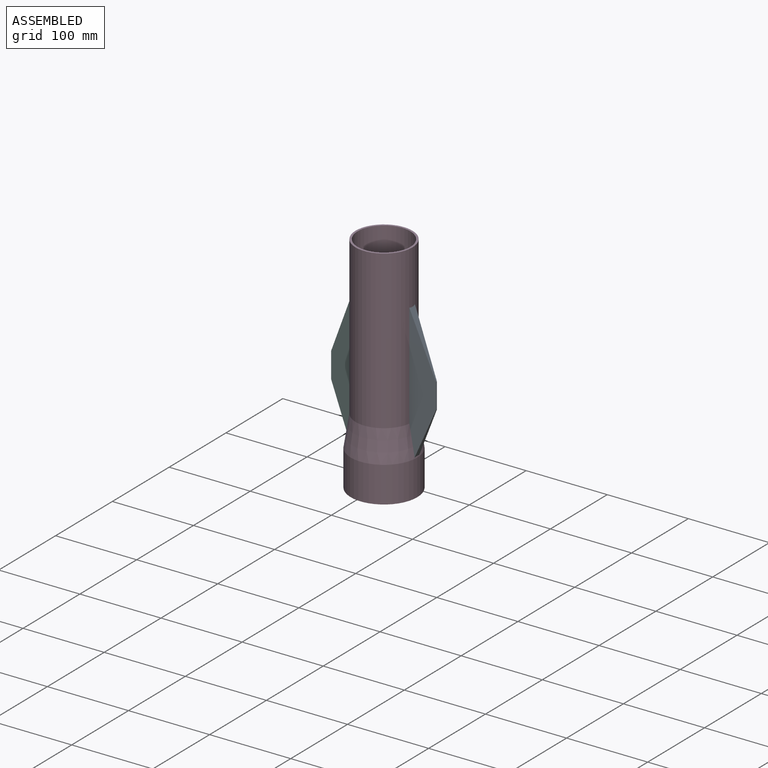
[diagram: assembled view]
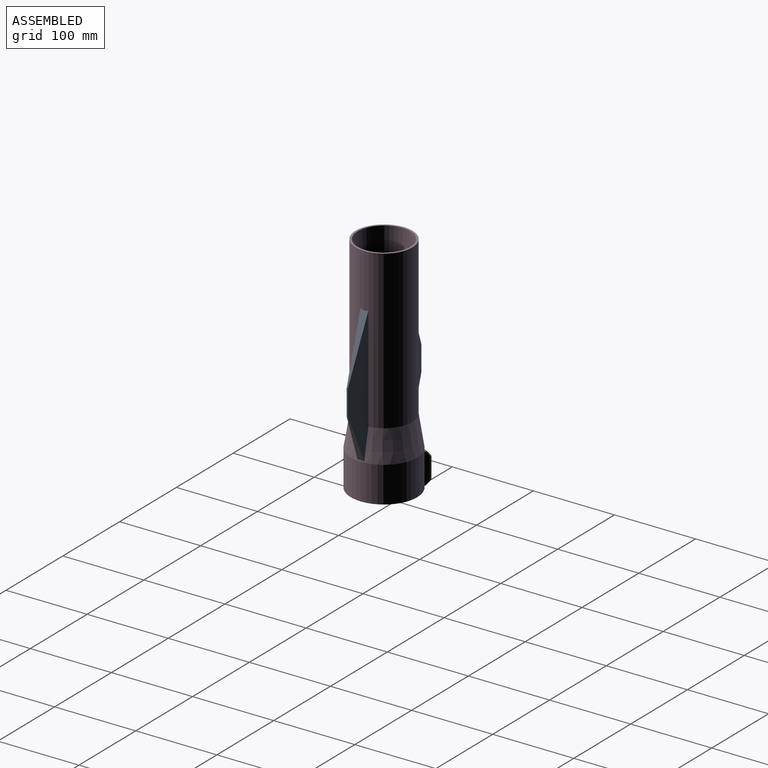
[diagram: assembled view, second angle]
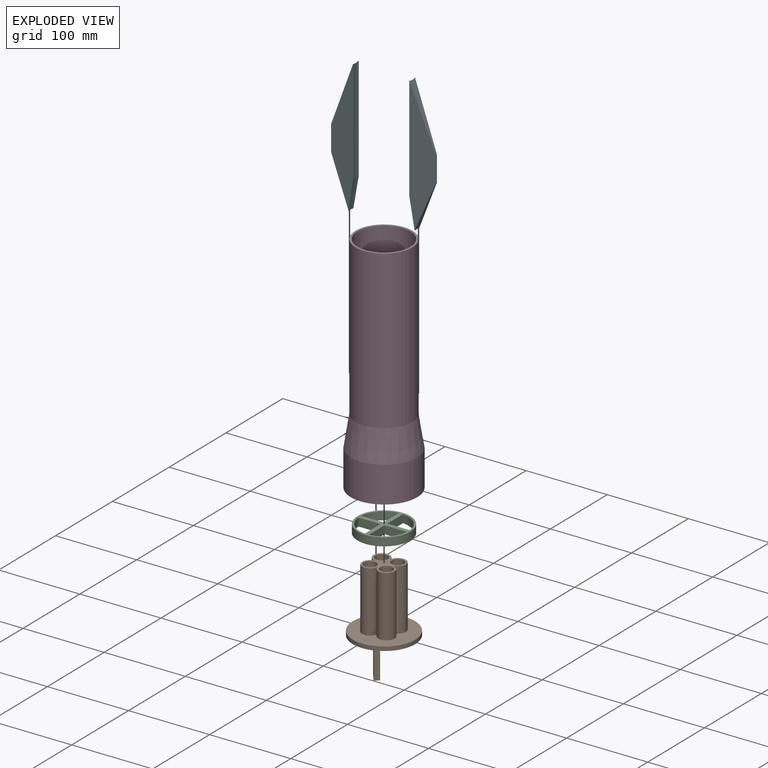
[diagram: exploded view]
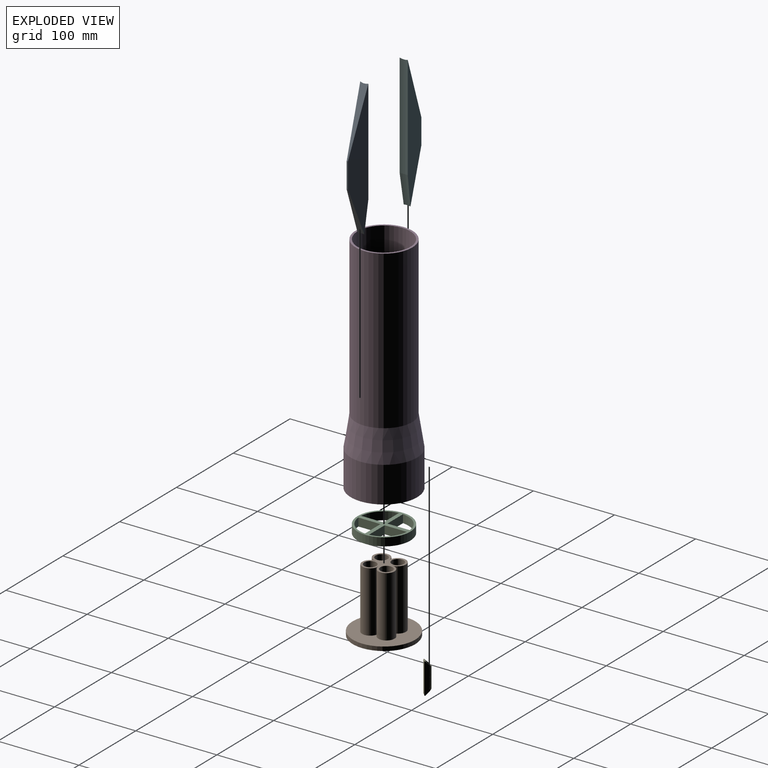
[diagram: exploded view, second angle]
ASSEMBLY  parts=6 mates=5
PART A: 7 faces, bbox 165.9x10x30 mm
  f0: plane 58.03x23.97mm, normal (0.38,0,0.92), area 307.7mm2, adj f1,f3,f4,f6
  f1: plane 31.5x1.57mm, normal (0,0,1), area 49.6mm2, adj f0,f2,f3,f4
  f2: plane 76.32x29.98mm, normal (-0.37,0,0.93), area 468mm2, adj f1,f3,f4,f5
  f3: plane 165.86x29.98mm, normal (0,-0.99,0.14), area 3049.8mm2, adj f0,f1,f2,f5,f6
  f4: plane 165.86x29.98mm, normal (0,0.99,0.14), area 3049.8mm2, adj f0,f1,f2,f5,f6
  f5: cylinder r=35mm len=128.52mm, axis (1,0,0), area 1283.3mm2, adj f2,f3,f4,f6
  f6: cylinder r=35mm len=37.41mm, axis (0.99,0,0.16), area 344.8mm2, adj f0,f3,f4,f5
PART B: 20 faces, bbox 77x77x80 mm
  f0: cylinder r=9mm len=75mm, axis (0,0,-1), area 4241.2mm2, adj f6,f12
  f1: cylinder r=9mm len=75mm, axis (0,0,-1), area 4241.2mm2, adj f6,f11
  f2: cylinder r=9mm len=75mm, axis (0,0,-1), area 4241.2mm2, adj f6,f14
  f3: cylinder r=9mm len=75mm, axis (0,0,-1), area 4241.2mm2, adj f6,f13
  f4: cylinder r=38.5mm len=77mm, axis (0,0,-1), area 1209.5mm2, adj f5,f6
  f5: plane 77x77mm, normal (0,0,1), area 3314.1mm2, adj f4,f7,f8,f9,f10
  f6: plane 77x77mm, normal (0,0,-1), area 3638.7mm2, adj f0,f1,f2,f3,f4
  f7: cylinder r=10mm len=75mm, axis (0,0,-1), area 3534.3mm2, adj f5,f8,f10,f15
  f8: cylinder r=10mm len=75mm, axis (0,0,-1), area 3534.3mm2, adj f5,f7,f9,f15
  f9: cylinder r=10mm len=75mm, axis (0,0,-1), area 3534.3mm2, adj f5,f8,f10,f15
  f10: cylinder r=10mm len=75mm, axis (0,0,-1), area 3534.3mm2, adj f5,f7,f9,f15
  f11: plane 18x18mm, normal (0,0,-1), area 77.8mm2, adj f1,f18
  f12: plane 18x18mm, normal (0,0,-1), area 77.8mm2, adj f0,f17
  f13: plane 18x18mm, normal (0,0,-1), area 77.8mm2, adj f3,f19
  f14: plane 18x18mm, normal (0,0,-1), area 77.8mm2, adj f2,f16
  f15: plane 40x40mm, normal (0,0,1), area 635.6mm2, adj f7,f8,f9,f10,f16,f17,f18,f19
  f16: cylinder r=7.5mm len=15mm, axis (0,0,1), area 235.6mm2, adj f14,f15
  f17: cylinder r=7.5mm len=15mm, axis (0,0,1), area 235.6mm2, adj f12,f15
  f18: cylinder r=7.5mm len=15mm, axis (0,0,1), area 235.6mm2, adj f11,f15
  f19: cylinder r=7.5mm len=15mm, axis (0,0,1), area 235.6mm2, adj f13,f15
PART C: 15 faces, bbox 65x65x10 mm
  f0: plane 27.4x10mm, normal (1,0,0), area 274mm2, adj f1,f8,f13,f14
  f1: cylinder r=30mm len=27.4mm, axis (0,0,-1), area 421.2mm2, adj f0,f8,f13,f14
  f2: cylinder r=30mm len=27.4mm, axis (0,0,-1), area 421.2mm2, adj f3,f9,f13,f14
  f3: plane 27.4x10mm, normal (-1,0,0), area 274mm2, adj f2,f9,f13,f14
  f4: cylinder r=30mm len=27.4mm, axis (0,0,-1), area 421.2mm2, adj f5,f10,f13,f14
  f5: plane 27.4x10mm, normal (0,-1,0), area 274mm2, adj f4,f10,f13,f14
  f6: cylinder r=30mm len=27.4mm, axis (0,0,-1), area 421.2mm2, adj f7,f11,f13,f14
  f7: plane 27.4x10mm, normal (1,0,0), area 274mm2, adj f6,f11,f13,f14
  f8: plane 27.4x10mm, normal (0,1,0), area 274mm2, adj f0,f1,f13,f14
  f9: plane 27.4x10mm, normal (0,1,0), area 274mm2, adj f2,f3,f13,f14
  f10: plane 27.4x10mm, normal (-1,0,0), area 274mm2, adj f4,f5,f13,f14
  f11: plane 27.4x10mm, normal (0,-1,0), area 274mm2, adj f6,f7,f13,f14
  f12: cylinder r=32.5mm len=65mm, axis (0,0,-1), area 2042mm2, adj f13,f14
  f13: plane 65x65mm, normal (0,0,1), area 1065.2mm2, adj f0,f1,f2,f3,f4,f5,f6,f7
  f14: plane 65x65mm, normal (0,0,-1), area 1065.2mm2, adj f0,f1,f2,f3,f4,f5,f6,f7
PART D: 8 faces, bbox 82x82x276.7 mm
  f0: cylinder r=35mm len=194.5mm, axis (0,0,-1), area 42772.8mm2, adj f1,f7
  f1: cone r=35mm half-angle=9deg, axis (0,0,-1), area 9185.3mm2, adj f0,f2
  f2: cylinder r=41mm len=82mm, axis (0,0,-1), area 11386.4mm2, adj f1,f3
  f3: plane 82x82mm, normal (0,0,-1), area 624.4mm2, adj f2,f4
  f4: cylinder r=38.5mm len=77mm, axis (0,0,-1), area 10692.1mm2, adj f3,f5
  f5: cone r=32.5mm half-angle=9deg, axis (0,0,-1), area 8581mm2, adj f4,f6
  f6: cylinder r=32.5mm len=194.5mm, axis (0,0,-1), area 39717.6mm2, adj f5,f7
  f7: plane 70x70mm, normal (0,0,1), area 530.1mm2, adj f0,f6
PART E: 10 faces, bbox 7.5x39.3x9.1 mm
  f0: plane 38.1x3.94mm, normal (1,0,0), area 141mm2, adj f1,f3,f4,f5,f6,f9
  f1: plane 6.35x0.94mm, normal (0,1,0), area 5.4mm2, adj f0,f2,f4,f9
  f2: plane 38.1x3.94mm, normal (-1,0,0), area 141mm2, adj f1,f3,f4,f5,f7,f9
  f3: plane 6.35x0.94mm, normal (0,-1,0), area 5.4mm2, adj f0,f2,f5,f9
  f4: plane 8.16x8.16mm, normal (0,0.71,0.71), area 21.8mm2, adj f0,f1,f2,f6,f7,f8
  f5: plane 7x7mm, normal (0,-0.71,0.71), area 21.8mm2, adj f0,f2,f3,f6,f7,f8
  f6: bspline ~35.31x4mm, area 154.3mm2, adj f0,f4,f5,f7
  f7: bspline ~35.31x4mm, area 154.3mm2, adj f2,f4,f5,f6
  f8: cylinder r=2.75mm len=36.5mm, axis (0,-1,0), area 535.6mm2, adj f4,f5
  f9: cylinder r=41mm len=38.1mm, axis (0,-1,0), area 242.2mm2, adj f0,f1,f2,f3
PART F: same geometry as A
PLACE A rot(axis=(0,1,0),90deg) t=(33.79,70.45,75.89)mm
PLACE B t=(-0.85,65.45,-49.6)mm
PLACE C t=(-0.85,65.45,32.6)mm
PLACE D t=(-0.85,65.45,-49.6)mm fixed
PLACE E rot(axis=(-0.86,-0.36,0.36),98.4deg) t=(-29.75,94.36,-30.55)mm
PLACE F rot(axis=(0.71,0,-0.71),180deg) t=(-35.49,60.45,75.89)mm
MATE fastened B.f4 <-> D.f0  axis (0,0,-1) through (-0.85,65.45,-49.6)mm
MATE fastened A.f5 <-> D.f0  axis (0,0,-1) through (-0.85,65.45,32.6)mm
MATE fastened F.f5 <-> D.f0  axis (0,0,-1) through (-0.85,65.45,32.6)mm
MATE fastened C.f12 <-> D.f0  axis (0,0,-1) through (-0.85,65.45,32.6)mm
MATE revolute E.f9 <-> D.f0  axis (0,0,1) through (-0.85,65.45,-49.6)mm
